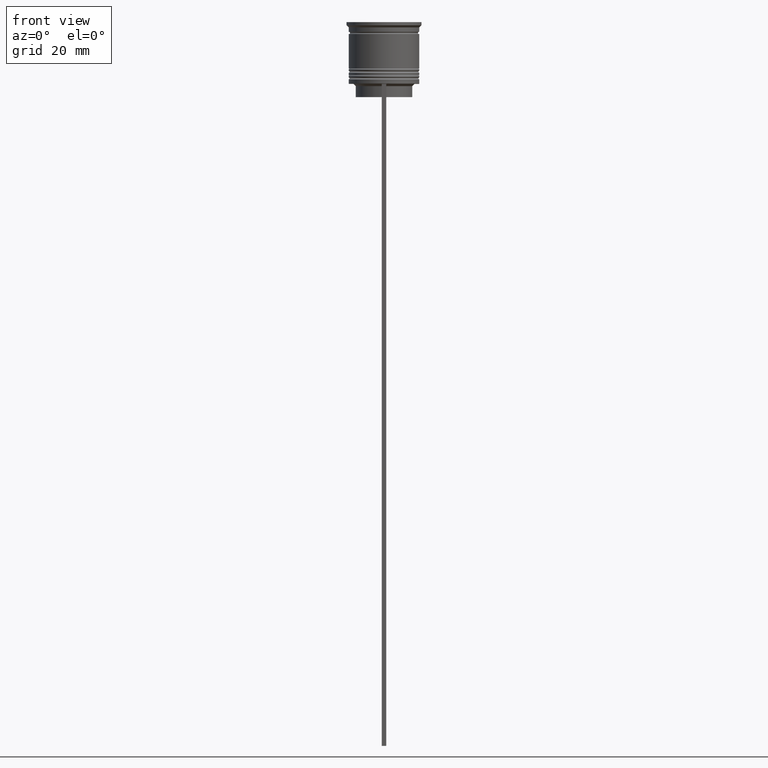
[diagram: clean part render]
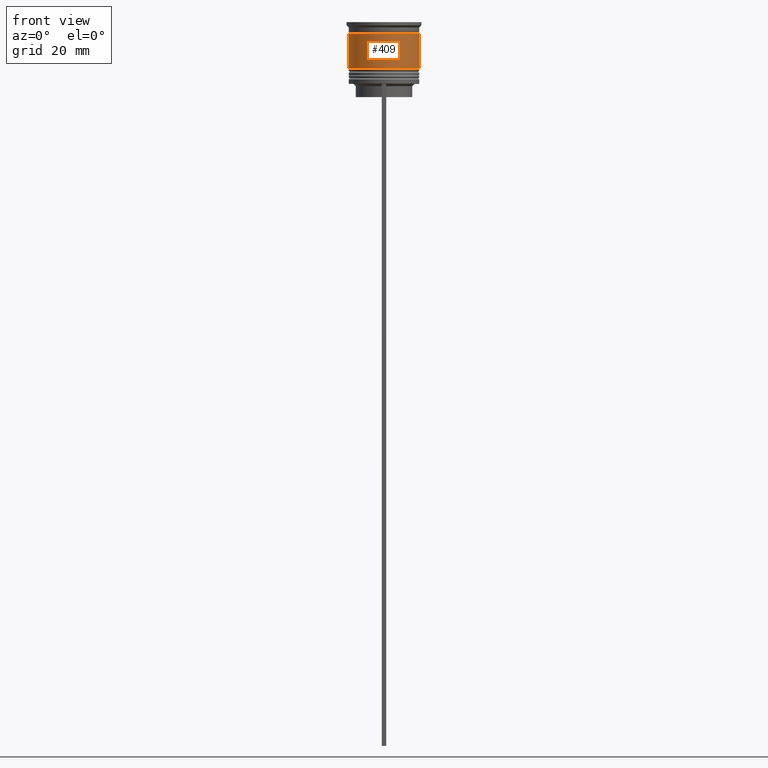
[diagram: same view with one face highlighted and labeled with its STEP entity id]
A machine part, front view. The second image highlights one B-rep face of the part: STEP entity #409.
In plain terms, the highlighted cylindrical surface (edge-blend (fillet) strip) has radius 8 mm, axis along (-0, -0, 1).
Its self-contained STEP definition (entity closure, byte-faithful):
#66 = FACE_OUTER_BOUND ( 'NONE', #833, .T. ) ;
#83 = VERTEX_POINT ( 'NONE', #878 ) ;
#132 = DIRECTION ( 'NONE',  ( 1.000000000000000000, 0.000000000000000000, 0.000000000000000000 ) ) ;
#154 = LINE ( 'NONE', #2271, #2374 ) ;
#247 = EDGE_CURVE ( 'NONE', #1629, #1559, #1194, .T. ) ;
#249 = CYLINDRICAL_SURFACE ( 'NONE', #1363, 8.000000000000000000 ) ;
#251 = AXIS2_PLACEMENT_3D ( 'NONE', #743, #1507, #622 ) ;
#289 = ORIENTED_EDGE ( 'NONE', *, *, #1550, .F. ) ;
#336 = AXIS2_PLACEMENT_3D ( 'NONE', #774, #980, #371 ) ;
#371 = DIRECTION ( 'NONE',  ( 1.000000000000000000, 0.000000000000000000, 0.000000000000000000 ) ) ;
#402 = ORIENTED_EDGE ( 'NONE', *, *, #1839, .F. ) ;
#409 = ADVANCED_FACE ( 'NONE', ( #66 ), #249, .T. ) ;
#622 = DIRECTION ( 'NONE',  ( 1.000000000000000000, 0.000000000000000000, 0.000000000000000000 ) ) ;
#635 = CARTESIAN_POINT ( 'NONE',  ( 0.000000000000000000, 0.000000000000000000, 0.000000000000000000 ) ) ;
#743 = CARTESIAN_POINT ( 'NONE',  ( 0.000000000000000000, 0.000000000000000000, -2.700000000000001510 ) ) ;
#774 = CARTESIAN_POINT ( 'NONE',  ( 0.000000000000000000, 0.000000000000000000, -10.50000000000000000 ) ) ;
#833 = EDGE_LOOP ( 'NONE', ( #402, #1995, #2268, #289 ) ) ;
#847 = CARTESIAN_POINT ( 'NONE',  ( -8.000000000000001776, 9.797174393178827630E-16, -10.50000000000000000 ) ) ;
#878 = CARTESIAN_POINT ( 'NONE',  ( 7.999999999999998224, 0.000000000000000000, -2.700000000000001510 ) ) ;
#980 = DIRECTION ( 'NONE',  ( -0.000000000000000000, -0.000000000000000000, 1.000000000000000000 ) ) ;
#985 = VERTEX_POINT ( 'NONE', #2281 ) ;
#1125 = DIRECTION ( 'NONE',  ( -0.000000000000000000, -0.000000000000000000, 1.000000000000000000 ) ) ;
#1194 = CIRCLE ( 'NONE', #336, 8.000000000000001776 ) ;
#1248 = DIRECTION ( 'NONE',  ( -0.000000000000000000, -0.000000000000000000, 1.000000000000000000 ) ) ;
#1293 = DIRECTION ( 'NONE',  ( -0.000000000000000000, -0.000000000000000000, 1.000000000000000000 ) ) ;
#1363 = AXIS2_PLACEMENT_3D ( 'NONE', #635, #1293, #132 ) ;
#1483 = VECTOR ( 'NONE', #1248, 1000.000000000000000 ) ;
#1507 = DIRECTION ( 'NONE',  ( -0.000000000000000000, -0.000000000000000000, 1.000000000000000000 ) ) ;
#1550 = EDGE_CURVE ( 'NONE', #985, #83, #1771, .T. ) ;
#1559 = VERTEX_POINT ( 'NONE', #1719 ) ;
#1629 = VERTEX_POINT ( 'NONE', #847 ) ;
#1719 = CARTESIAN_POINT ( 'NONE',  ( 8.000000000000001776, 0.000000000000000000, -10.50000000000000000 ) ) ;
#1771 = CIRCLE ( 'NONE', #251, 7.999999999999998224 ) ;
#1839 = EDGE_CURVE ( 'NONE', #1629, #985, #2192, .T. ) ;
#1995 = ORIENTED_EDGE ( 'NONE', *, *, #247, .T. ) ;
#2066 = CARTESIAN_POINT ( 'NONE',  ( -8.000000000000000000, 9.797174393178825657E-16, 0.000000000000000000 ) ) ;
#2153 = EDGE_CURVE ( 'NONE', #1559, #83, #154, .T. ) ;
#2192 = LINE ( 'NONE', #2066, #1483 ) ;
#2268 = ORIENTED_EDGE ( 'NONE', *, *, #2153, .T. ) ;
#2271 = CARTESIAN_POINT ( 'NONE',  ( 8.000000000000000000, 0.000000000000000000, 0.000000000000000000 ) ) ;
#2281 = CARTESIAN_POINT ( 'NONE',  ( -7.999999999999998224, 9.797174393178823685E-16, -2.700000000000001510 ) ) ;
#2374 = VECTOR ( 'NONE', #1125, 1000.000000000000000 ) ;